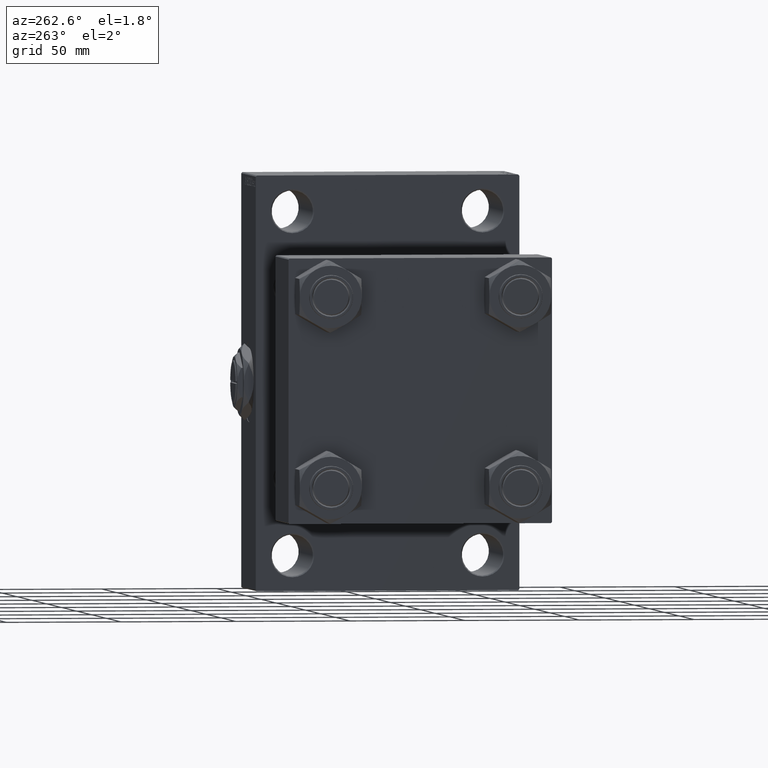
[diagram: clean part render]
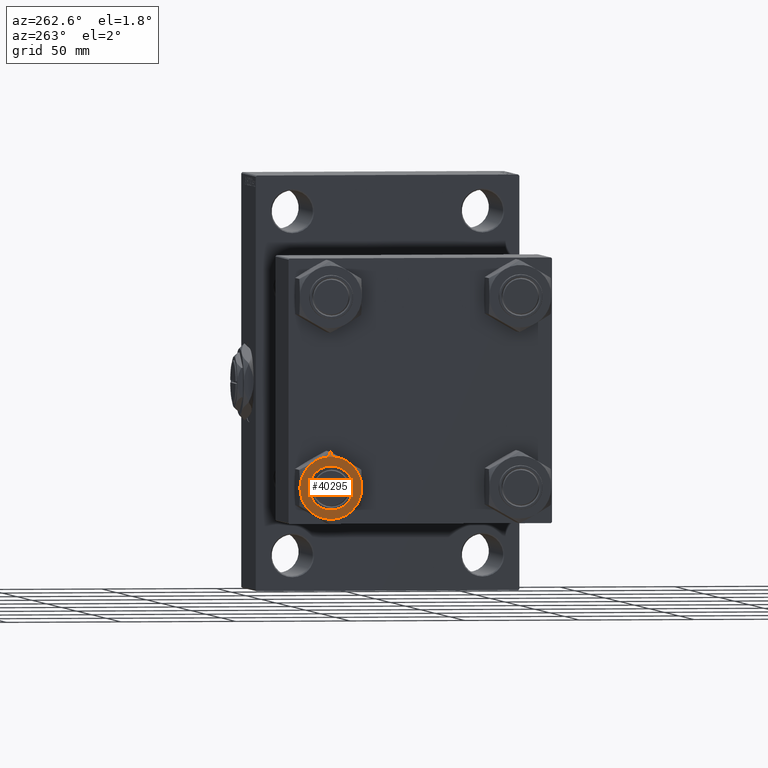
[diagram: same view with one face highlighted and labeled with its STEP entity id]
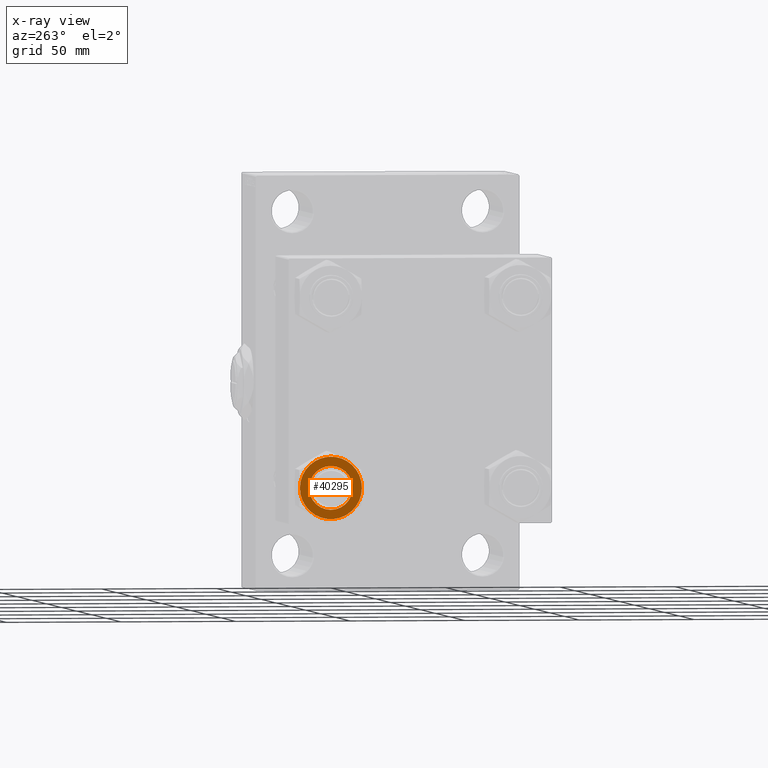
[diagram: x-ray of the same camera — body ghosted, the highlighted face saturated]
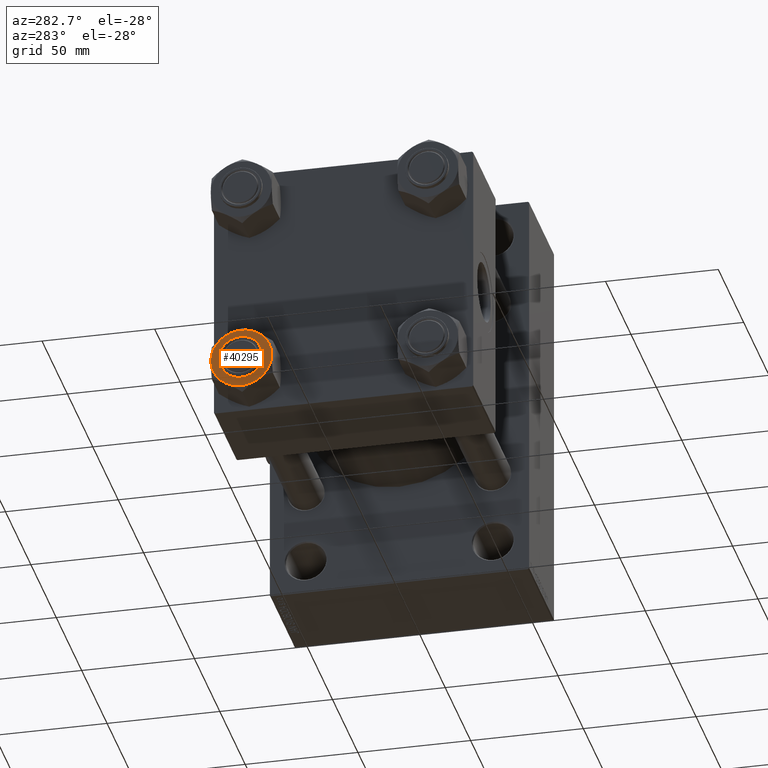
[diagram: same view with one face highlighted and labeled with its STEP entity id]
A machine part, auxiliary view. The second image highlights one B-rep face of the part: STEP entity #40295.
The next image is the same camera in x-ray: the body ghosted, the highlighted face saturated — about 0% of this face is hidden behind the body in this view.
A second angle (auxiliary view) of the same face is appended — the face is thin or edge-on in the first view.
In plain terms, the highlighted planar face has unit normal (1, 0, 0).
Its self-contained STEP definition (entity closure, byte-faithful):
#263 = CARTESIAN_POINT ( 'NONE',  ( -9.500000000000000000, 0.000000000000000000, 0.000000000000000000 ) ) ;
#374 = ORIENTED_EDGE ( 'NONE', *, *, #14445, .T. ) ;
#432 = VERTEX_POINT ( 'NONE', #2709 ) ;
#550 = ORIENTED_EDGE ( 'NONE', *, *, #4236, .F. ) ;
#1206 = DIRECTION ( 'NONE',  ( 1.000000000000000000, 0.000000000000000000, 0.000000000000000000 ) ) ;
#1335 = ORIENTED_EDGE ( 'NONE', *, *, #45800, .F. ) ;
#1708 = EDGE_LOOP ( 'NONE', ( #1335, #11493 ) ) ;
#2166 = EDGE_CURVE ( 'NONE', #33983, #44479, #22332, .T. ) ;
#2709 = CARTESIAN_POINT ( 'NONE',  ( 0.000000000000000000, 13.52731680711293905, 0.000000000000000000 ) ) ;
#4236 = EDGE_CURVE ( 'NONE', #48726, #45663, #13707, .T. ) ;
#4518 = EDGE_LOOP ( 'NONE', ( #10410, #550, #34594, #18011, #10757, #21115, #374 ) ) ;
#5019 = CARTESIAN_POINT ( 'NONE',  ( 0.000000000000000000, 0.000000000000000000, 0.000000000000000000 ) ) ;
#5260 = DIRECTION ( 'NONE',  ( -1.000000000000000000, 0.000000000000000000, 0.000000000000000000 ) ) ;
#5353 = CIRCLE ( 'NONE', #21203, 13.52731680711294082 ) ;
#5449 = CIRCLE ( 'NONE', #39581, 13.52731680711294082 ) ;
#8140 = CARTESIAN_POINT ( 'NONE',  ( 0.000000000000000000, 0.000000000000000000, 0.000000000000000000 ) ) ;
#9066 = CARTESIAN_POINT ( 'NONE',  ( 0.000000000000000000, 0.000000000000000000, 0.000000000000000000 ) ) ;
#9337 = DIRECTION ( 'NONE',  ( -1.000000000000000000, 0.000000000000000000, 0.000000000000000000 ) ) ;
#9521 = AXIS2_PLACEMENT_3D ( 'NONE', #31265, #38723, #1206 ) ;
#10410 = ORIENTED_EDGE ( 'NONE', *, *, #46327, .F. ) ;
#10757 = ORIENTED_EDGE ( 'NONE', *, *, #39739, .F. ) ;
#10853 = CIRCLE ( 'NONE', #40181, 13.52731680711294082 ) ;
#11493 = ORIENTED_EDGE ( 'NONE', *, *, #28161, .F. ) ;
#11810 = CIRCLE ( 'NONE', #47541, 9.500000000000000000 ) ;
#12250 = CARTESIAN_POINT ( 'NONE',  ( 0.000000000000000000, 0.000000000000000000, 0.000000000000000000 ) ) ;
#12823 = CARTESIAN_POINT ( 'NONE',  ( 0.000000000000000000, 0.000000000000000000, 0.000000000000000000 ) ) ;
#13633 = AXIS2_PLACEMENT_3D ( 'NONE', #40955, #44203, #21581 ) ;
#13707 = CIRCLE ( 'NONE', #38317, 13.52731680711294082 ) ;
#14445 = EDGE_CURVE ( 'NONE', #44198, #432, #48404, .T. ) ;
#15777 = CARTESIAN_POINT ( 'NONE',  ( 9.500000000000000000, 1.163414459189985485E-15, 0.000000000000000000 ) ) ;
#15846 = DIRECTION ( 'NONE',  ( 0.000000000000000000, -0.000000000000000000, -1.000000000000000000 ) ) ;
#15983 = FACE_BOUND ( 'NONE', #1708, .T. ) ;
#16102 = DIRECTION ( 'NONE',  ( -1.000000000000000000, 0.000000000000000000, 0.000000000000000000 ) ) ;
#16709 = DIRECTION ( 'NONE',  ( -1.000000000000000000, 0.000000000000000000, -0.000000000000000000 ) ) ;
#17236 = CARTESIAN_POINT ( 'NONE',  ( -11.71500000000000519, 6.763658403556469523, 0.000000000000000000 ) ) ;
#18011 = ORIENTED_EDGE ( 'NONE', *, *, #2166, .F. ) ;
#19619 = DIRECTION ( 'NONE',  ( 0.000000000000000000, -0.000000000000000000, -1.000000000000000000 ) ) ;
#19676 = AXIS2_PLACEMENT_3D ( 'NONE', #33510, #40958, #21337 ) ;
#20706 = CARTESIAN_POINT ( 'NONE',  ( 13.52731680711294082, 0.000000000000000000, 0.000000000000000000 ) ) ;
#21115 = ORIENTED_EDGE ( 'NONE', *, *, #32723, .F. ) ;
#21203 = AXIS2_PLACEMENT_3D ( 'NONE', #45247, #19619, #27072 ) ;
#21337 = DIRECTION ( 'NONE',  ( -1.000000000000000000, 0.000000000000000000, 0.000000000000000000 ) ) ;
#21581 = DIRECTION ( 'NONE',  ( -1.000000000000000000, 0.000000000000000000, 0.000000000000000000 ) ) ;
#21693 = CARTESIAN_POINT ( 'NONE',  ( 0.000000000000000000, 0.000000000000000000, 0.000000000000000000 ) ) ;
#22332 = CIRCLE ( 'NONE', #13633, 13.52731680711294082 ) ;
#24195 = DIRECTION ( 'NONE',  ( 1.000000000000000000, 0.000000000000000000, 0.000000000000000000 ) ) ;
#24418 = CIRCLE ( 'NONE', #19676, 13.52731680711294082 ) ;
#24436 = DIRECTION ( 'NONE',  ( 0.000000000000000000, 0.000000000000000000, 1.000000000000000000 ) ) ;
#27072 = DIRECTION ( 'NONE',  ( -1.000000000000000000, 0.000000000000000000, 0.000000000000000000 ) ) ;
#27290 = CIRCLE ( 'NONE', #44756, 9.500000000000000000 ) ;
#28161 = EDGE_CURVE ( 'NONE', #44843, #48317, #27290, .T. ) ;
#31122 = FACE_OUTER_BOUND ( 'NONE', #4518, .T. ) ;
#31265 = CARTESIAN_POINT ( 'NONE',  ( 0.000000000000000000, 0.000000000000000000, 0.000000000000000000 ) ) ;
#32723 = EDGE_CURVE ( 'NONE', #44198, #46762, #10853, .T. ) ;
#33510 = CARTESIAN_POINT ( 'NONE',  ( 0.000000000000000000, 0.000000000000000000, 0.000000000000000000 ) ) ;
#33750 = CARTESIAN_POINT ( 'NONE',  ( -11.71500000000000874, -6.763658403556465082, 0.000000000000000000 ) ) ;
#33983 = VERTEX_POINT ( 'NONE', #44848 ) ;
#34594 = ORIENTED_EDGE ( 'NONE', *, *, #40742, .F. ) ;
#34758 = AXIS2_PLACEMENT_3D ( 'NONE', #12250, #46786, #16709 ) ;
#35506 = CARTESIAN_POINT ( 'NONE',  ( 11.71500000000000696, 6.763658403556468635, 0.000000000000000000 ) ) ;
#35576 = DIRECTION ( 'NONE',  ( 0.000000000000000000, -0.000000000000000000, -1.000000000000000000 ) ) ;
#36622 = DIRECTION ( 'NONE',  ( 1.000000000000000000, 0.000000000000000000, 0.000000000000000000 ) ) ;
#38317 = AXIS2_PLACEMENT_3D ( 'NONE', #12823, #42640, #9337 ) ;
#38723 = DIRECTION ( 'NONE',  ( 0.000000000000000000, 0.000000000000000000, 1.000000000000000000 ) ) ;
#39581 = AXIS2_PLACEMENT_3D ( 'NONE', #8140, #15846, #16102 ) ;
#39739 = EDGE_CURVE ( 'NONE', #46762, #33983, #5353, .T. ) ;
#40181 = AXIS2_PLACEMENT_3D ( 'NONE', #5019, #35576, #5260 ) ;
#40295 = ADVANCED_FACE ( 'NONE', ( #15983, #31122 ), #46296, .F. ) ;
#40742 = EDGE_CURVE ( 'NONE', #44479, #48726, #24418, .T. ) ;
#40955 = CARTESIAN_POINT ( 'NONE',  ( 0.000000000000000000, 0.000000000000000000, 0.000000000000000000 ) ) ;
#40958 = DIRECTION ( 'NONE',  ( 0.000000000000000000, -0.000000000000000000, -1.000000000000000000 ) ) ;
#42640 = DIRECTION ( 'NONE',  ( 0.000000000000000000, -0.000000000000000000, -1.000000000000000000 ) ) ;
#44198 = VERTEX_POINT ( 'NONE', #35506 ) ;
#44203 = DIRECTION ( 'NONE',  ( 0.000000000000000000, -0.000000000000000000, -1.000000000000000000 ) ) ;
#44479 = VERTEX_POINT ( 'NONE', #45413 ) ;
#44756 = AXIS2_PLACEMENT_3D ( 'NONE', #9066, #24436, #24195 ) ;
#44843 = VERTEX_POINT ( 'NONE', #15777 ) ;
#44848 = CARTESIAN_POINT ( 'NONE',  ( 11.71500000000000519, -6.763658403556470411, 0.000000000000000000 ) ) ;
#45247 = CARTESIAN_POINT ( 'NONE',  ( 0.000000000000000000, 0.000000000000000000, 0.000000000000000000 ) ) ;
#45413 = CARTESIAN_POINT ( 'NONE',  ( 1.502314598737159031E-15, -13.52731680711294082, 0.000000000000000000 ) ) ;
#45663 = VERTEX_POINT ( 'NONE', #17236 ) ;
#45800 = EDGE_CURVE ( 'NONE', #48317, #44843, #11810, .T. ) ;
#46296 = PLANE ( 'NONE',  #34758 ) ;
#46327 = EDGE_CURVE ( 'NONE', #45663, #432, #5449, .T. ) ;
#46762 = VERTEX_POINT ( 'NONE', #20706 ) ;
#46786 = DIRECTION ( 'NONE',  ( 0.000000000000000000, 0.000000000000000000, -1.000000000000000000 ) ) ;
#47541 = AXIS2_PLACEMENT_3D ( 'NONE', #21693, #48548, #36622 ) ;
#48317 = VERTEX_POINT ( 'NONE', #263 ) ;
#48404 = CIRCLE ( 'NONE', #9521, 13.52731680711293905 ) ;
#48548 = DIRECTION ( 'NONE',  ( 0.000000000000000000, 0.000000000000000000, 1.000000000000000000 ) ) ;
#48726 = VERTEX_POINT ( 'NONE', #33750 ) ;